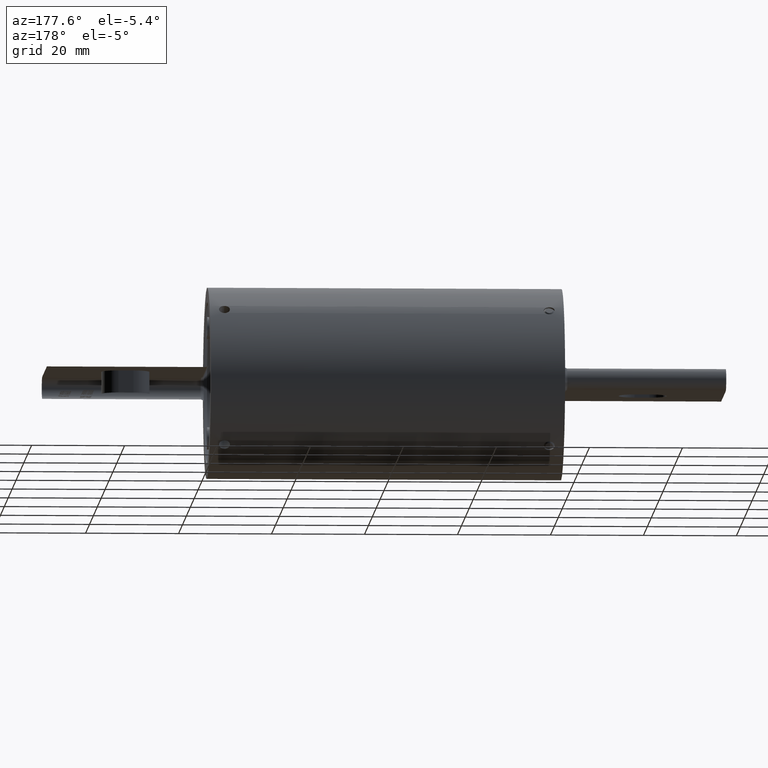
[diagram: clean part render]
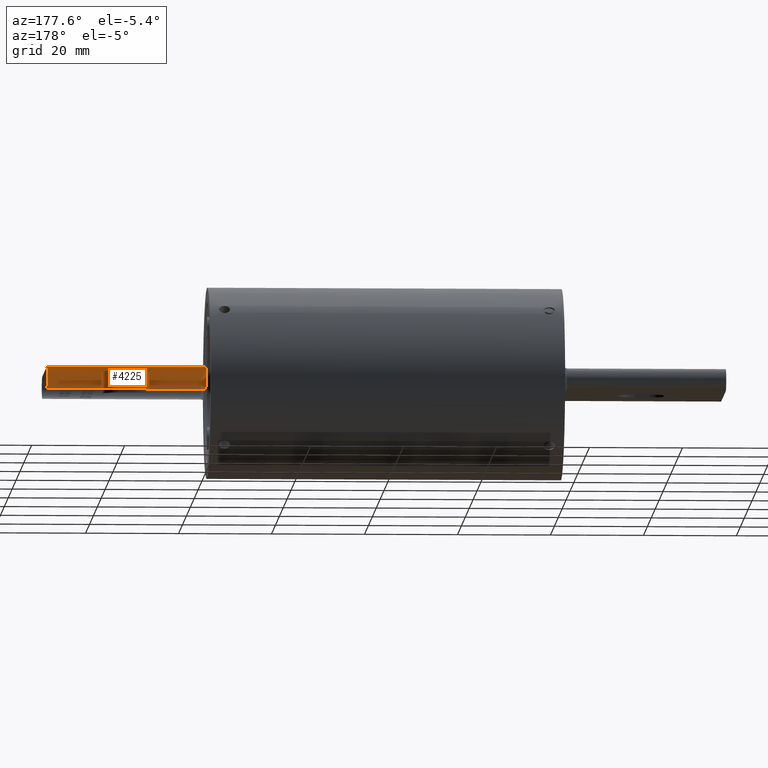
[diagram: same view with one face highlighted and labeled with its STEP entity id]
A machine part, auxiliary view. The second image highlights one B-rep face of the part: STEP entity #4225.
In plain terms, the highlighted cylindrical surface (edge-blend (fillet) strip) has radius 2.3812 mm, axis along (-1, -0, 0).
Its self-contained STEP definition (entity closure, byte-faithful):
#16 = AXIS2_PLACEMENT_3D ( 'NONE', #1689, #1661, #1645 ) ;
#51 = CARTESIAN_POINT ( 'NONE',  ( 1.530000000000000200, 0.4687500073641994700, -5.627297962793976300E-008 ) ) ;
#533 = EDGE_LOOP ( 'NONE', ( #6924, #4503, #6031, #3113, #9057 ) ) ;
#618 = EDGE_CURVE ( 'NONE', #3110, #2842, #5627, .T. ) ;
#920 = AXIS2_PLACEMENT_3D ( 'NONE', #7553, #6610, #6305 ) ;
#1645 = DIRECTION ( 'NONE',  ( 0.0000000000000000000, 0.0000000000000000000, 1.000000000000000000 ) ) ;
#1661 = DIRECTION ( 'NONE',  ( 1.000000000000000000, 4.554757781245011700E-018, -3.476380063340317700E-017 ) ) ;
#1689 = CARTESIAN_POINT ( 'NONE',  ( 1.530000000000000200, 0.4687500073641994700, -5.627297962793976300E-008 ) ) ;
#2353 = CIRCLE ( 'NONE', #6080, 0.09374999999999998600 ) ;
#2842 = VERTEX_POINT ( 'NONE', #4878 ) ;
#2897 = EDGE_CURVE ( 'NONE', #6774, #7805, #4442, .T. ) ;
#3017 = FACE_OUTER_BOUND ( 'NONE', #533, .T. ) ;
#3035 = VERTEX_POINT ( 'NONE', #8906 ) ;
#3059 = DIRECTION ( 'NONE',  ( 0.0000000000000000000, 0.0000000000000000000, 1.000000000000000000 ) ) ;
#3110 = VERTEX_POINT ( 'NONE', #7031 ) ;
#3113 = ORIENTED_EDGE ( 'NONE', *, *, #5771, .F. ) ;
#3549 = EDGE_CURVE ( 'NONE', #7805, #3035, #6205, .T. ) ;
#3904 = CYLINDRICAL_SURFACE ( 'NONE', #920, 0.09374999999999998600 ) ;
#4102 = AXIS2_PLACEMENT_3D ( 'NONE', #10117, #10089, #10084 ) ;
#4225 = ADVANCED_FACE ( 'NONE', ( #3017 ), #3904, .F. ) ;
#4376 = CARTESIAN_POINT ( 'NONE',  ( 2.875000000000000400, 0.4687500073641994700, 0.09374994372702032100 ) ) ;
#4442 = LINE ( 'NONE', #4376, #6318 ) ;
#4500 = CARTESIAN_POINT ( 'NONE',  ( 1.530000000000000200, 0.4687500073641994700, 0.09374994372702033500 ) ) ;
#4503 = ORIENTED_EDGE ( 'NONE', *, *, #9530, .F. ) ;
#4767 = VECTOR ( 'NONE', #6234, 39.37007874015748100 ) ;
#4878 = CARTESIAN_POINT ( 'NONE',  ( 1.530000000000000200, 0.5625000073641994700, -5.627297962364527900E-008 ) ) ;
#5627 = CIRCLE ( 'NONE', #16, 0.09374999999999998600 ) ;
#5771 = EDGE_CURVE ( 'NONE', #3035, #3110, #6832, .T. ) ;
#6031 = ORIENTED_EDGE ( 'NONE', *, *, #618, .F. ) ;
#6080 = AXIS2_PLACEMENT_3D ( 'NONE', #51, #7946, #3059 ) ;
#6205 = CIRCLE ( 'NONE', #4102, 0.09374999999999998600 ) ;
#6234 = DIRECTION ( 'NONE',  ( -1.000000000000000000, -0.0000000000000000000, 3.476380063340317700E-017 ) ) ;
#6305 = DIRECTION ( 'NONE',  ( 0.0000000000000000000, 0.0000000000000000000, 1.000000000000000000 ) ) ;
#6318 = VECTOR ( 'NONE', #6467, 39.37007874015748100 ) ;
#6467 = DIRECTION ( 'NONE',  ( 1.000000000000000000, -0.0000000000000000000, -3.476380063340317700E-017 ) ) ;
#6600 = CARTESIAN_POINT ( 'NONE',  ( 2.875000000000000400, 0.4687500073641994700, -0.09375005627297969300 ) ) ;
#6610 = DIRECTION ( 'NONE',  ( -1.000000000000000000, -4.554757781245011700E-018, 3.476380063340317700E-017 ) ) ;
#6774 = VERTEX_POINT ( 'NONE', #4500 ) ;
#6832 = LINE ( 'NONE', #6600, #4767 ) ;
#6924 = ORIENTED_EDGE ( 'NONE', *, *, #2897, .F. ) ;
#7031 = CARTESIAN_POINT ( 'NONE',  ( 1.530000000000000200, 0.4687500073641994700, -0.09375005627297965100 ) ) ;
#7553 = CARTESIAN_POINT ( 'NONE',  ( 2.875000000000000400, 0.4687500073641994700, -5.627297967469708000E-008 ) ) ;
#7805 = VERTEX_POINT ( 'NONE', #8346 ) ;
#7946 = DIRECTION ( 'NONE',  ( 1.000000000000000000, 4.554757781245011700E-018, -3.476380063340317700E-017 ) ) ;
#8346 = CARTESIAN_POINT ( 'NONE',  ( 2.875000000000000400, 0.4687500073641994700, 0.09374994372702032100 ) ) ;
#8906 = CARTESIAN_POINT ( 'NONE',  ( 2.875000000000000400, 0.4687500073641994700, -0.09375005627297969300 ) ) ;
#9057 = ORIENTED_EDGE ( 'NONE', *, *, #3549, .F. ) ;
#9530 = EDGE_CURVE ( 'NONE', #2842, #6774, #2353, .T. ) ;
#10084 = DIRECTION ( 'NONE',  ( 0.0000000000000000000, 0.0000000000000000000, 1.000000000000000000 ) ) ;
#10089 = DIRECTION ( 'NONE',  ( -1.000000000000000000, -4.554757781245011700E-018, 3.476380063340317700E-017 ) ) ;
#10117 = CARTESIAN_POINT ( 'NONE',  ( 2.875000000000000400, 0.4687500073641994700, -5.627297967469708000E-008 ) ) ;